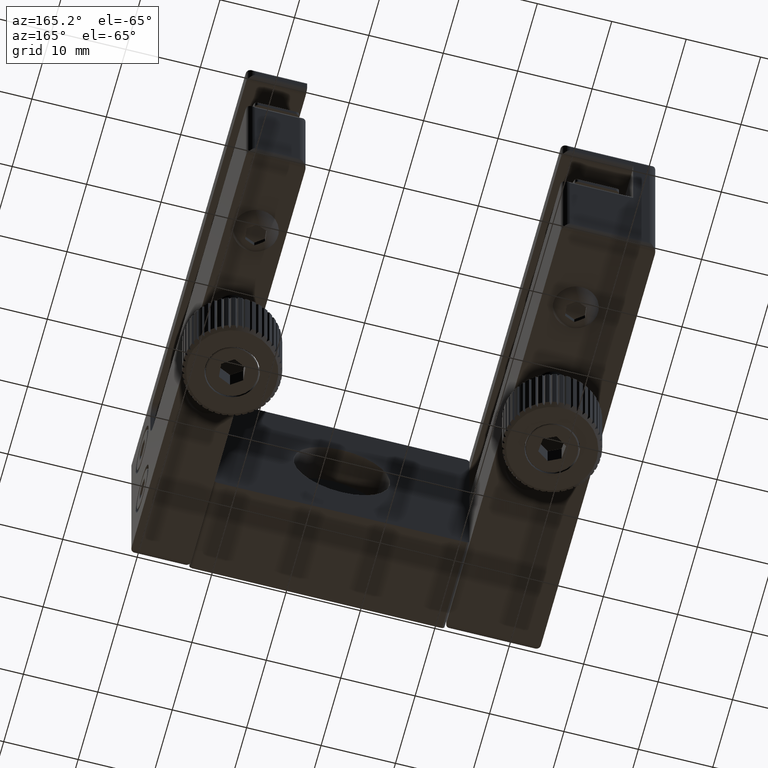
[diagram: clean part render]
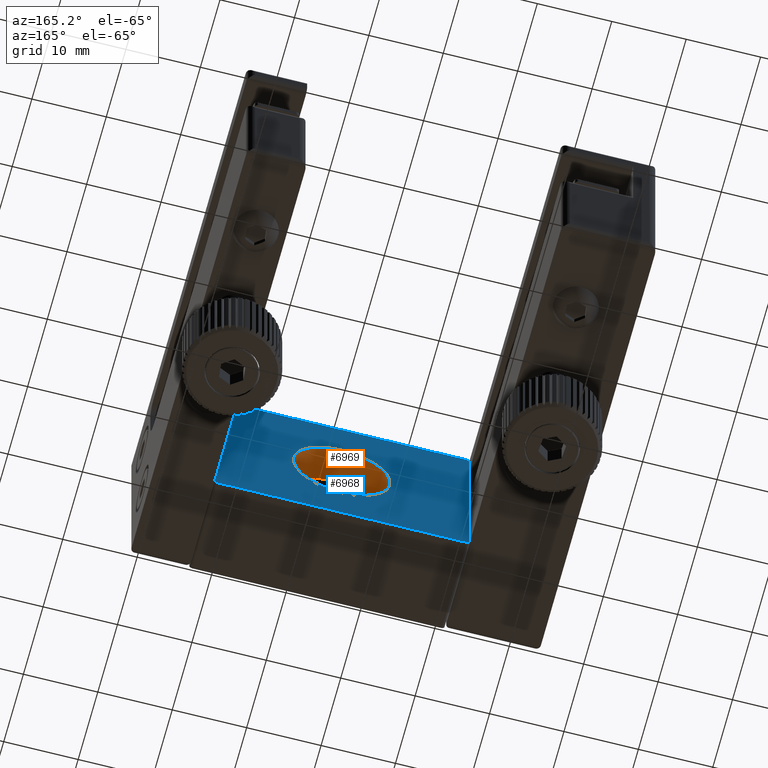
[diagram: same view with the hole feature highlighted: cylindrical wall and planar end face, labeled with their STEP entity ids]
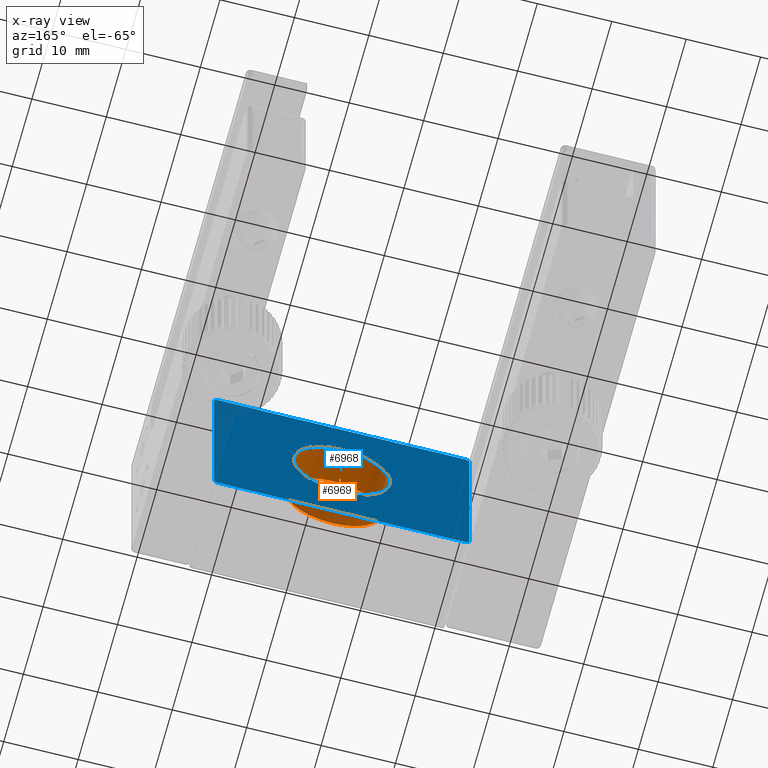
[diagram: x-ray of the same camera — body ghosted, the hole faces saturated]
A machine part, auxiliary view. The highlighted faces form one hole feature of diameter 13 mm: the cylindrical wall (entity #6969, orange) and its adjacent planar end face (entity #6968, blue) — they share a circular edge in the B-rep.
The next image is the same camera in x-ray (body ghosted, the hole faces saturated) — the bore reads through the body.
Wall:
#765 = AXIS2_PLACEMENT_3D ( 'NONE', #4844, #4845, #4846 ) ;
#767 = AXIS2_PLACEMENT_3D ( 'NONE', #4852, #4853, #4854 ) ;
#4844 = CARTESIAN_POINT ( 'NONE',  ( -6.482490272373540900, -0.7366695489263562800, -3.469446951953614200E-015 ) ) ;
#4845 = DIRECTION ( 'NONE',  ( -0.0000000000000000000, 1.000000000000000000, -0.0000000000000000000 ) ) ;
#4846 = DIRECTION ( 'NONE',  ( 0.0000000000000000000, 0.0000000000000000000, 1.000000000000000000 ) ) ;
#4852 = CARTESIAN_POINT ( 'NONE',  ( -6.482490272373540900, 3.863330451073643700, -3.469446951953614200E-015 ) ) ;
#4853 = DIRECTION ( 'NONE',  ( -0.0000000000000000000, 1.000000000000000000, -0.0000000000000000000 ) ) ;
#4854 = DIRECTION ( 'NONE',  ( 0.0000000000000000000, 0.0000000000000000000, 1.000000000000000000 ) ) ;
#4983 = CIRCLE ( 'NONE', #765, 6.499999999999999100 ) ;
#4988 = CIRCLE ( 'NONE', #767, 6.499999999999995600 ) ;
#5928 = VERTEX_POINT ( 'NONE', #9504 ) ;
#5929 = VERTEX_POINT ( 'NONE', #9505 ) ;
#6969 = ADVANCED_FACE ( 'NONE', ( #18046, #18050 ), #18052, .F. ) ;
#8666 = CARTESIAN_POINT ( 'NONE',  ( -6.482490272373540900, 3.863330451073643700, -3.469446951953614200E-015 ) ) ;
#8668 = DIRECTION ( 'NONE',  ( -0.0000000000000000000, 1.000000000000000000, -0.0000000000000000000 ) ) ;
#8672 = DIRECTION ( 'NONE',  ( 0.0000000000000000000, 0.0000000000000000000, 1.000000000000000000 ) ) ;
#9504 = CARTESIAN_POINT ( 'NONE',  ( -6.482490272373540900, -0.7366695489263562800, 6.499999999999995600 ) ) ;
#9505 = CARTESIAN_POINT ( 'NONE',  ( -6.482490272373540900, 3.863330451073643700, 6.499999999999992000 ) ) ;
#9615 = ORIENTED_EDGE ( 'NONE', *, *, #14847, .F. ) ;
#9616 = ORIENTED_EDGE ( 'NONE', *, *, #14849, .T. ) ;
#12771 = EDGE_LOOP ( 'NONE', ( #9615 ) ) ;
#12784 = EDGE_LOOP ( 'NONE', ( #9616 ) ) ;
#14847 = EDGE_CURVE ( 'NONE', #5928, #5928, #4983, .T. ) ;
#14849 = EDGE_CURVE ( 'NONE', #5929, #5929, #4988, .T. ) ;
#15498 = AXIS2_PLACEMENT_3D ( 'NONE', #8666, #8668, #8672 ) ;
#18046 = FACE_OUTER_BOUND ( 'NONE', #12771, .T. ) ;
#18050 = FACE_OUTER_BOUND ( 'NONE', #12784, .T. ) ;
#18052 = CYLINDRICAL_SURFACE ( 'NONE', #15498, 6.499999999999997300 ) ;
End face:
#767 = AXIS2_PLACEMENT_3D ( 'NONE', #4852, #4853, #4854 ) ;
#768 = AXIS2_PLACEMENT_3D ( 'NONE', #4858, #4859, #4860 ) ;
#2790 = CARTESIAN_POINT ( 'NONE',  ( -23.63249027237353800, 3.863330451073643700, -12.19999999999999900 ) ) ;
#2794 = CARTESIAN_POINT ( 'NONE',  ( -23.13249027237353800, 3.863330451073643700, -12.69999999999999900 ) ) ;
#2796 = CARTESIAN_POINT ( 'NONE',  ( 10.66750972762645800, 3.863330451073643700, 12.19999999999999900 ) ) ;
#2797 = CARTESIAN_POINT ( 'NONE',  ( 10.16750972762645800, 3.863330451073643700, -12.69999999999999900 ) ) ;
#2799 = CARTESIAN_POINT ( 'NONE',  ( 10.66750972762645800, 3.863330451073643700, -12.19999999999999900 ) ) ;
#2803 = CARTESIAN_POINT ( 'NONE',  ( 10.16750972762645800, 3.863330451073643700, 12.69999999999999900 ) ) ;
#2805 = CARTESIAN_POINT ( 'NONE',  ( -23.13249027237353800, 3.863330451073643700, 12.69999999999999900 ) ) ;
#2807 = CARTESIAN_POINT ( 'NONE',  ( -23.63249027237353800, 3.863330451073643700, 12.19999999999999900 ) ) ;
#4830 = CARTESIAN_POINT ( 'NONE',  ( -23.63249027237353800, 3.863330451073643700, 12.19999999999999900 ) ) ;
#4839 = DIRECTION ( 'NONE',  ( -0.0000000000000000000, -0.0000000000000000000, 1.000000000000000000 ) ) ;
#4847 = CARTESIAN_POINT ( 'NONE',  ( -23.13249027237353800, 3.863330451073643700, 12.69999999999999900 ) ) ;
#4852 = CARTESIAN_POINT ( 'NONE',  ( -6.482490272373540900, 3.863330451073643700, -3.469446951953614200E-015 ) ) ;
#4853 = DIRECTION ( 'NONE',  ( -0.0000000000000000000, 1.000000000000000000, -0.0000000000000000000 ) ) ;
#4854 = DIRECTION ( 'NONE',  ( 0.0000000000000000000, 0.0000000000000000000, 1.000000000000000000 ) ) ;
#4855 = DIRECTION ( 'NONE',  ( 1.000000000000000000, 0.0000000000000000000, 0.0000000000000000000 ) ) ;
#4858 = CARTESIAN_POINT ( 'NONE',  ( -23.13249027237353800, 3.863330451073643700, 12.19999999999999900 ) ) ;
#4859 = DIRECTION ( 'NONE',  ( 0.0000000000000000000, 1.000000000000000000, 0.0000000000000000000 ) ) ;
#4860 = DIRECTION ( 'NONE',  ( 0.0000000000000000000, 0.0000000000000000000, 1.000000000000000000 ) ) ;
#4982 = LINE ( 'NONE', #4830, #4986 ) ;
#4986 = VECTOR ( 'NONE', #4839, 1000.000000000000000 ) ;
#4988 = CIRCLE ( 'NONE', #767, 6.499999999999995600 ) ;
#4990 = CIRCLE ( 'NONE', #768, 0.5000000000000004400 ) ;
#4992 = LINE ( 'NONE', #4847, #4994 ) ;
#4994 = VECTOR ( 'NONE', #4855, 1000.000000000000000 ) ;
#5784 = LINE ( 'NONE', #8084, #5787 ) ;
#5786 = CIRCLE ( 'NONE', #8417, 0.5000000000000004400 ) ;
#5787 = VECTOR ( 'NONE', #8085, 1000.000000000000000 ) ;
#5797 = CIRCLE ( 'NONE', #8432, 0.5000000000000004400 ) ;
#5798 = LINE ( 'NONE', #8098, #5800 ) ;
#5800 = VECTOR ( 'NONE', #8105, 1000.000000000000000 ) ;
#5801 = CIRCLE ( 'NONE', #8433, 0.5000000000000004400 ) ;
#5929 = VERTEX_POINT ( 'NONE', #9505 ) ;
#6968 = ADVANCED_FACE ( 'NONE', ( #18044, #18045 ), #8670, .T. ) ;
#8084 = CARTESIAN_POINT ( 'NONE',  ( 10.66750972762645800, 3.863330451073643700, 12.19999999999999900 ) ) ;
#8085 = DIRECTION ( 'NONE',  ( 0.0000000000000000000, 0.0000000000000000000, -1.000000000000000000 ) ) ;
#8088 = CARTESIAN_POINT ( 'NONE',  ( 10.16750972762645800, 3.863330451073643700, 12.19999999999999900 ) ) ;
#8089 = DIRECTION ( 'NONE',  ( -0.0000000000000000000, 1.000000000000000000, -0.0000000000000000000 ) ) ;
#8090 = DIRECTION ( 'NONE',  ( 0.0000000000000000000, 0.0000000000000000000, -1.000000000000000000 ) ) ;
#8098 = CARTESIAN_POINT ( 'NONE',  ( -23.13249027237353800, 3.863330451073643700, -12.69999999999999900 ) ) ;
#8105 = DIRECTION ( 'NONE',  ( -1.000000000000000000, -0.0000000000000000000, -0.0000000000000000000 ) ) ;
#8108 = CARTESIAN_POINT ( 'NONE',  ( 10.16750972762645800, 3.863330451073643700, -12.19999999999999900 ) ) ;
#8109 = DIRECTION ( 'NONE',  ( 0.0000000000000000000, 1.000000000000000000, 0.0000000000000000000 ) ) ;
#8110 = DIRECTION ( 'NONE',  ( 0.0000000000000000000, 0.0000000000000000000, 1.000000000000000000 ) ) ;
#8112 = CARTESIAN_POINT ( 'NONE',  ( -23.13249027237353800, 3.863330451073643700, -12.19999999999999900 ) ) ;
#8113 = DIRECTION ( 'NONE',  ( 0.0000000000000000000, 1.000000000000000000, 0.0000000000000000000 ) ) ;
#8114 = DIRECTION ( 'NONE',  ( 0.0000000000000000000, 0.0000000000000000000, 1.000000000000000000 ) ) ;
#8417 = AXIS2_PLACEMENT_3D ( 'NONE', #8088, #8089, #8090 ) ;
#8432 = AXIS2_PLACEMENT_3D ( 'NONE', #8108, #8109, #8110 ) ;
#8433 = AXIS2_PLACEMENT_3D ( 'NONE', #8112, #8113, #8114 ) ;
#8667 = CARTESIAN_POINT ( 'NONE',  ( -23.13249027237353800, 3.863330451073643700, 12.19999999999999900 ) ) ;
#8669 = DIRECTION ( 'NONE',  ( 0.0000000000000000000, -0.0000000000000000000, 1.000000000000000000 ) ) ;
#8670 = PLANE ( 'NONE',  #15497 ) ;
#8671 = DIRECTION ( 'NONE',  ( 0.0000000000000000000, 1.000000000000000000, 0.0000000000000000000 ) ) ;
#9505 = CARTESIAN_POINT ( 'NONE',  ( -6.482490272373540900, 3.863330451073643700, 6.499999999999992000 ) ) ;
#9606 = ORIENTED_EDGE ( 'NONE', *, *, #14849, .F. ) ;
#9607 = ORIENTED_EDGE ( 'NONE', *, *, #14851, .T. ) ;
#9608 = ORIENTED_EDGE ( 'NONE', *, *, #14850, .T. ) ;
#9609 = ORIENTED_EDGE ( 'NONE', *, *, #15449, .T. ) ;
#9610 = ORIENTED_EDGE ( 'NONE', *, *, #15448, .T. ) ;
#9611 = ORIENTED_EDGE ( 'NONE', *, *, #15457, .T. ) ;
#9612 = ORIENTED_EDGE ( 'NONE', *, *, #15456, .T. ) ;
#9613 = ORIENTED_EDGE ( 'NONE', *, *, #15458, .T. ) ;
#9614 = ORIENTED_EDGE ( 'NONE', *, *, #14844, .T. ) ;
#12777 = EDGE_LOOP ( 'NONE', ( #9606 ) ) ;
#12781 = EDGE_LOOP ( 'NONE', ( #9607, #9608, #9609, #9610, #9611, #9612, #9613, #9614 ) ) ;
#13305 = VERTEX_POINT ( 'NONE', #2790 ) ;
#13309 = VERTEX_POINT ( 'NONE', #2794 ) ;
#13311 = VERTEX_POINT ( 'NONE', #2796 ) ;
#13312 = VERTEX_POINT ( 'NONE', #2797 ) ;
#13314 = VERTEX_POINT ( 'NONE', #2799 ) ;
#13318 = VERTEX_POINT ( 'NONE', #2803 ) ;
#13320 = VERTEX_POINT ( 'NONE', #2805 ) ;
#13322 = VERTEX_POINT ( 'NONE', #2807 ) ;
#14844 = EDGE_CURVE ( 'NONE', #13305, #13322, #4982, .T. ) ;
#14849 = EDGE_CURVE ( 'NONE', #5929, #5929, #4988, .T. ) ;
#14850 = EDGE_CURVE ( 'NONE', #13320, #13318, #4992, .T. ) ;
#14851 = EDGE_CURVE ( 'NONE', #13322, #13320, #4990, .T. ) ;
#15448 = EDGE_CURVE ( 'NONE', #13311, #13314, #5784, .T. ) ;
#15449 = EDGE_CURVE ( 'NONE', #13318, #13311, #5786, .T. ) ;
#15456 = EDGE_CURVE ( 'NONE', #13312, #13309, #5798, .T. ) ;
#15457 = EDGE_CURVE ( 'NONE', #13314, #13312, #5797, .T. ) ;
#15458 = EDGE_CURVE ( 'NONE', #13309, #13305, #5801, .T. ) ;
#15497 = AXIS2_PLACEMENT_3D ( 'NONE', #8667, #8671, #8669 ) ;
#18044 = FACE_BOUND ( 'NONE', #12777, .T. ) ;
#18045 = FACE_OUTER_BOUND ( 'NONE', #12781, .T. ) ;